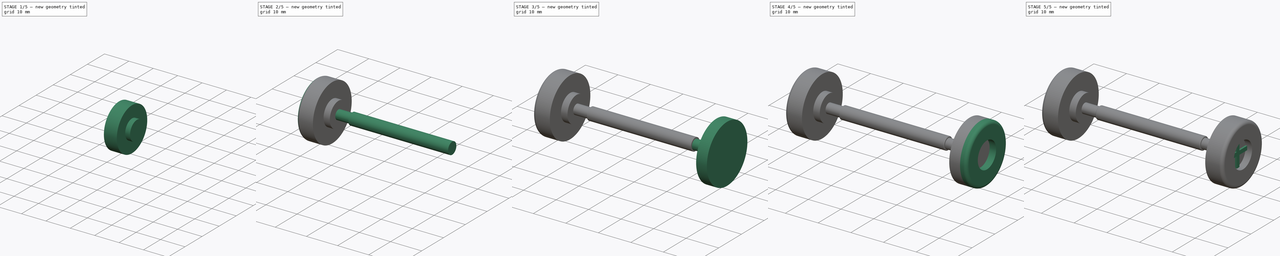
[diagram: build sequence overview — one tinted view per stage of 5, left to right]
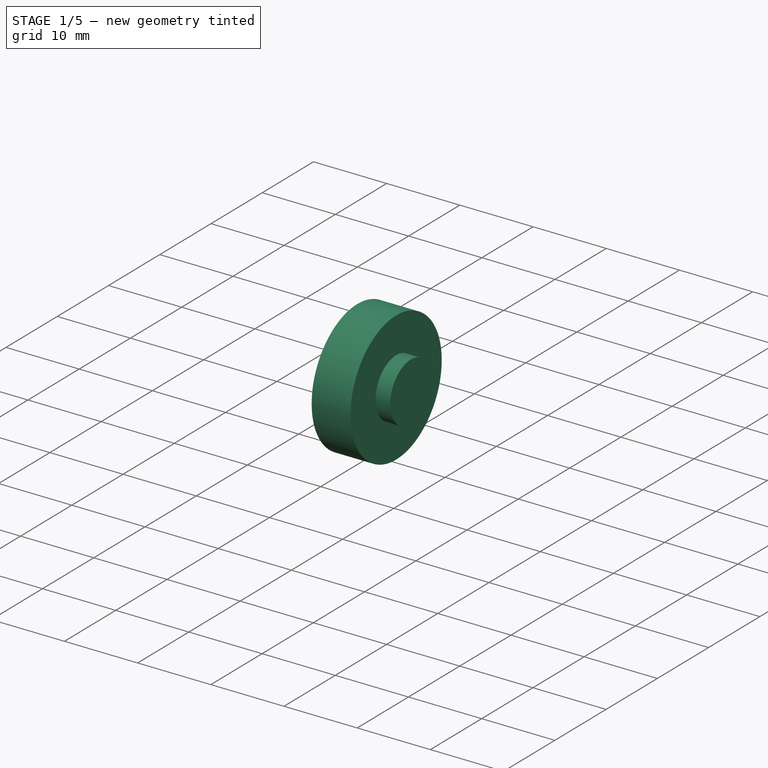
[diagram: stage 1 of 5 — iso view after this stage's code; geometry added in this stage tinted green]
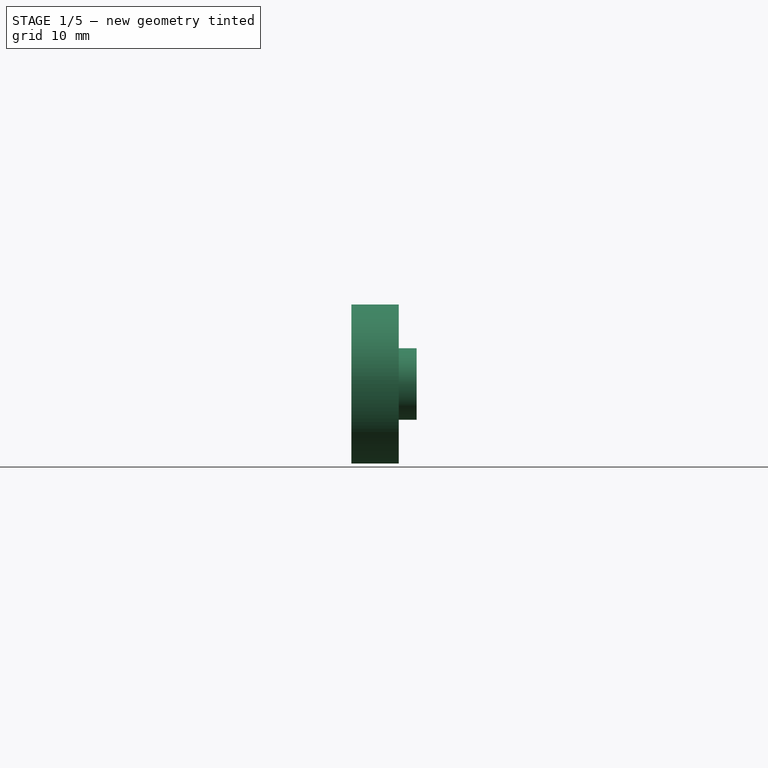
[diagram: stage 1 of 5 — front view after this stage's code; geometry added in this stage tinted green]
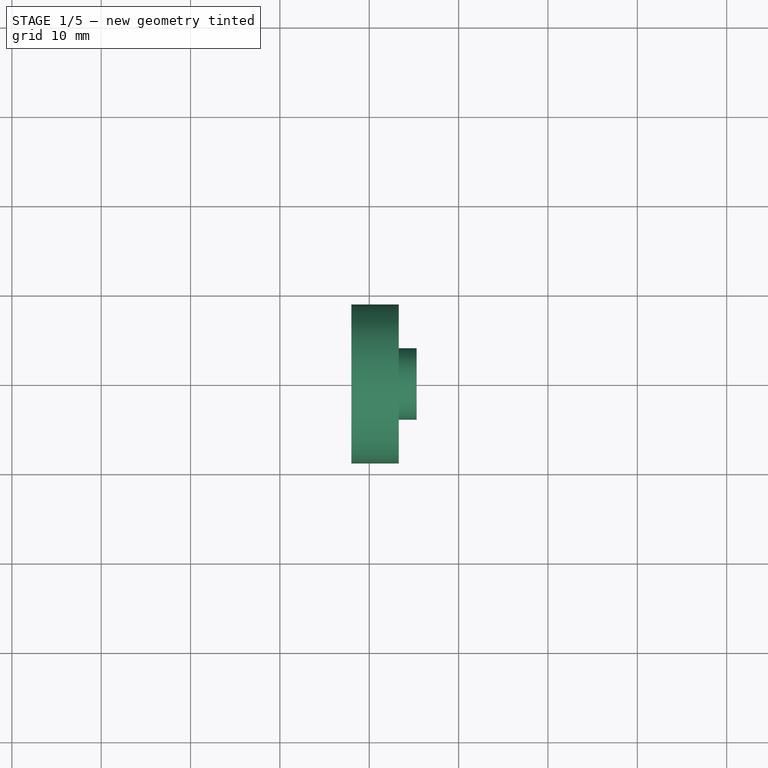
[diagram: stage 1 of 5 — top view after this stage's code; geometry added in this stage tinted green]
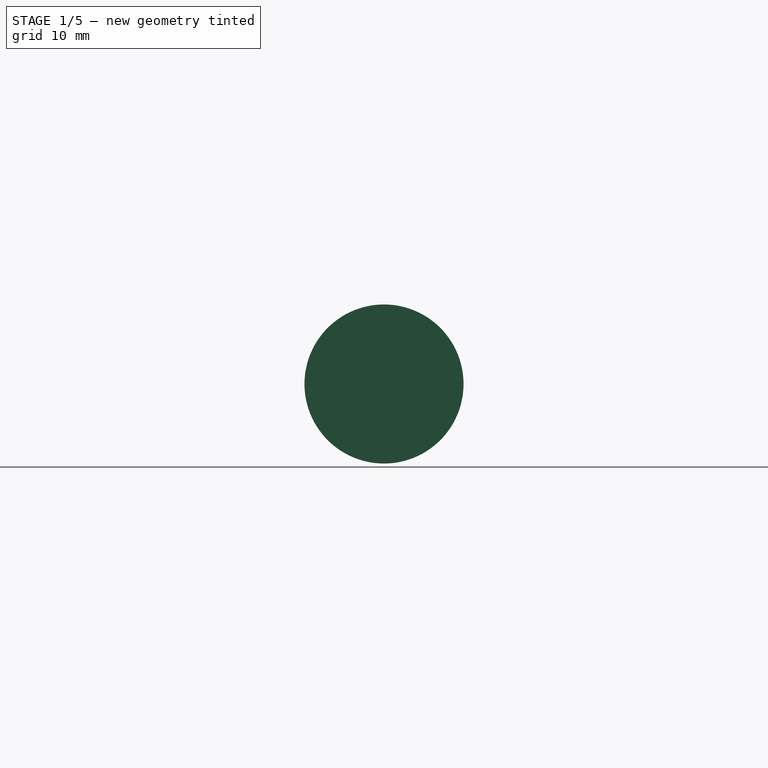
[diagram: stage 1 of 5 — right view after this stage's code; geometry added in this stage tinted green]
FCSTD DOCUMENT  (FreeCAD 0.18R16155 (Git))
Label: roues_arbre_magique2
License: All rights reserved
LicenseURL: http://en.wikipedia.org/wiki/All_rights_reserved
objects: Sketcher::SketchObject×11, PartDesign::Pad×11, PartDesign::Fillet×4, PartDesign::Body×1, App::Part×1
note: 38 computed .brp shape members not serialized (recipe doc carries the construction recipe); baked Part::Feature solids carry a one-line shape summary decoded from their .brp

FEATURE [Sketcher::SketchObject] Sketch
  MapMode = 5
  Placement = pos=(0,0,0) rot=(0.57735,0.57735,0.57735;2.0944rad)
  Support = -> [YZ_Plane001]
  sketch-geometry (1):
    g0: Circle CenterX=0 CenterY=0 CenterZ=0 NormalX=0 NormalY=0 NormalZ=1 AngleXU=0 Radius=8.9
  constraints (2):
    c: Coincident(g0,g-1)
    c: Diameter(g0) = 17.8
FEATURE [PartDesign::Pad] Pad
  Length = 3.3
  Length2 = 100
  Placement = pos=(0,0,0) rot=(0.57735,0.57735,0.57735;2.0944rad)
  Profile = -> Sketch
  Type = 0
FEATURE [Sketcher::SketchObject] Sketch001
  MapMode = 5
  Placement = pos=(0,0,0) rot=(0.57735,0.57735,-0.57735;4.18879rad)
  Support = -> [Pad]
  sketch-geometry (2):
    g0: Circle CenterX=0 CenterY=0 CenterZ=0 NormalX=0 NormalY=0 NormalZ=1 AngleXU=0 Radius=8.9
    g1: Circle CenterX=0 CenterY=0 CenterZ=0 NormalX=0 NormalY=0 NormalZ=1 AngleXU=0 Radius=4
  constraints (4):
    c: Coincident(g0,g-1)
    c: Diameter(g0) = 17.8
    c: Diameter(g1) = 8
    c: Coincident(g1,g0)
FEATURE [PartDesign::Pad] Pad001
  BaseFeature = -> Pad
  Length = 2
  Length2 = 100
  Placement = pos=(0,0,0) rot=(0.57735,0.57735,0.57735;2.0944rad)
  Profile = -> Sketch001
  Type = 0
FEATURE [Sketcher::SketchObject] Sketch003
  MapMode = 5
  Placement = pos=(3.3,-2.2e-15,1.5e-15) rot=(0.57735,0.57735,0.57735;2.0944rad)
  Support = -> [Pad001]
  sketch-geometry (1):
    g0: Circle CenterX=0 CenterY=0 CenterZ=0 NormalX=0 NormalY=0 NormalZ=1 AngleXU=0 Radius=4
  constraints (2):
    c: Coincident(g0,g-1)
    c: Diameter(g0) = 8
FEATURE [PartDesign::Pad] Pad002
  BaseFeature = -> Pad001
  Length = 2
  Length2 = 100
  Placement = pos=(0,0,0) rot=(0.57735,0.57735,0.57735;2.0944rad)
  Profile = -> Sketch003
  Type = 0
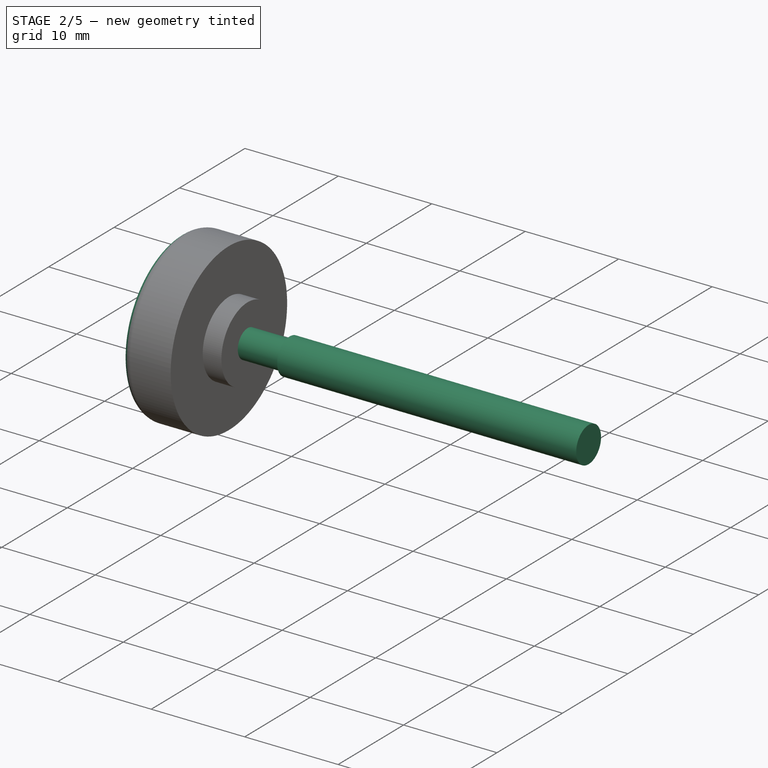
[diagram: stage 2 of 5 — iso view after this stage's code; geometry added in this stage tinted green]
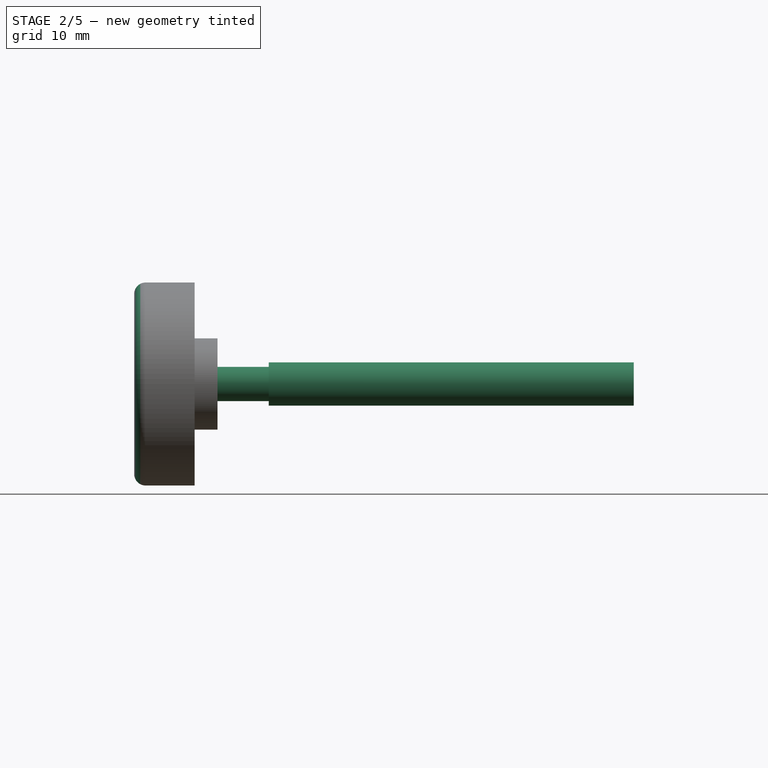
[diagram: stage 2 of 5 — front view after this stage's code; geometry added in this stage tinted green]
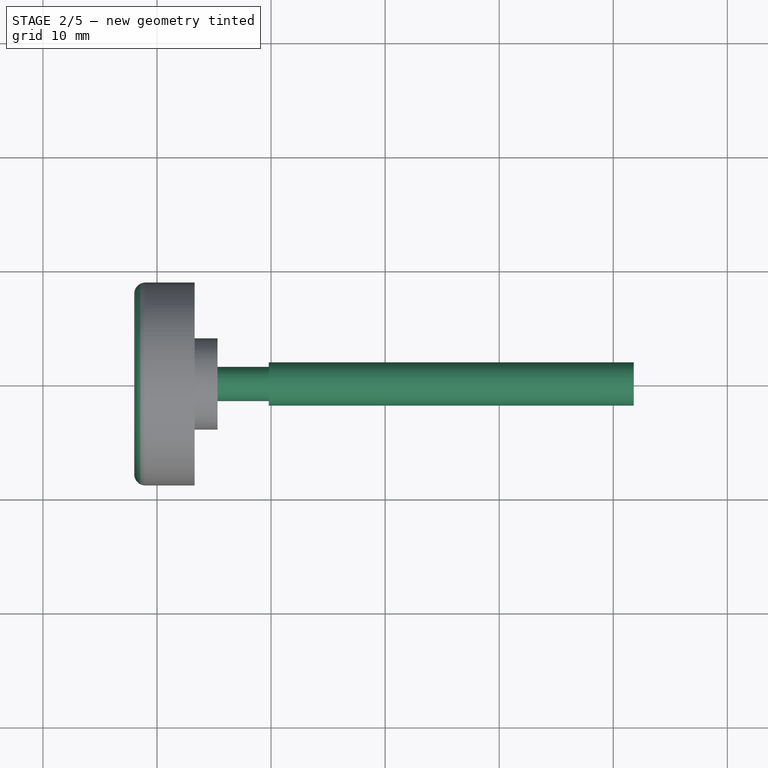
[diagram: stage 2 of 5 — top view after this stage's code; geometry added in this stage tinted green]
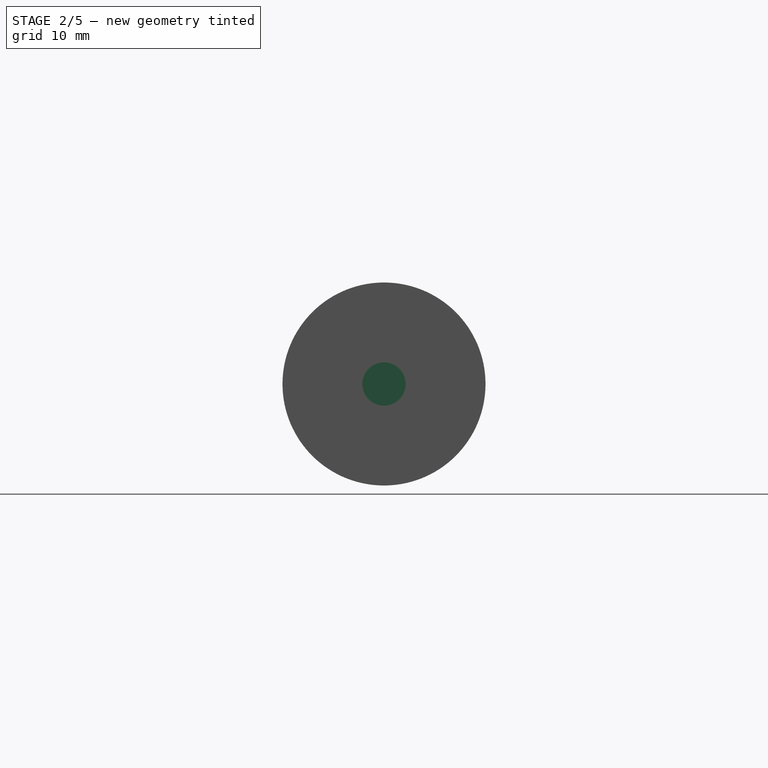
[diagram: stage 2 of 5 — right view after this stage's code; geometry added in this stage tinted green]
FEATURE [Sketcher::SketchObject] Sketch004
  MapMode = 5
  Placement = pos=(5.3,-4.7e-15,3.3e-15) rot=(0.57735,0.57735,0.57735;2.0944rad)
  Support = -> [Pad002]
  sketch-geometry (1):
    g0: Circle CenterX=0 CenterY=0 CenterZ=0 NormalX=0 NormalY=0 NormalZ=1 AngleXU=0 Radius=1.5
  constraints (2):
    c: Coincident(g0,g-1)
    c: Diameter(g0) = 3
FEATURE [PartDesign::Pad] Pad003
  BaseFeature = -> Pad002
  Length = 4.5
  Length2 = 100
  Placement = pos=(0,0,0) rot=(0.57735,0.57735,0.57735;2.0944rad)
  Profile = -> Sketch004
  Type = 0
FEATURE [Sketcher::SketchObject] Sketch005
  MapMode = 5
  Placement = pos=(9.8,-8e-15,4.4e-15) rot=(0.57735,0.57735,0.57735;2.0944rad)
  Support = -> [Pad003]
  sketch-geometry (1):
    g0: Circle CenterX=0 CenterY=0 CenterZ=0 NormalX=0 NormalY=0 NormalZ=1 AngleXU=0 Radius=1.9
  constraints (2):
    c: Coincident(g0,g-1)
    c: Diameter(g0) = 3.8
FEATURE [PartDesign::Pad] Pad004
  BaseFeature = -> Pad003
  Length = 32
  Length2 = 100
  Placement = pos=(0,0,0) rot=(0.57735,0.57735,0.57735;2.0944rad)
  Profile = -> Sketch005
  Type = 0
FEATURE [PartDesign::Fillet] Fillet
  Base = -> Pad004 [Edge14]
  BaseFeature = -> Pad004
  Placement = pos=(0,0,0) rot=(0.57735,0.57735,0.57735;2.0944rad)
  Radius = 1
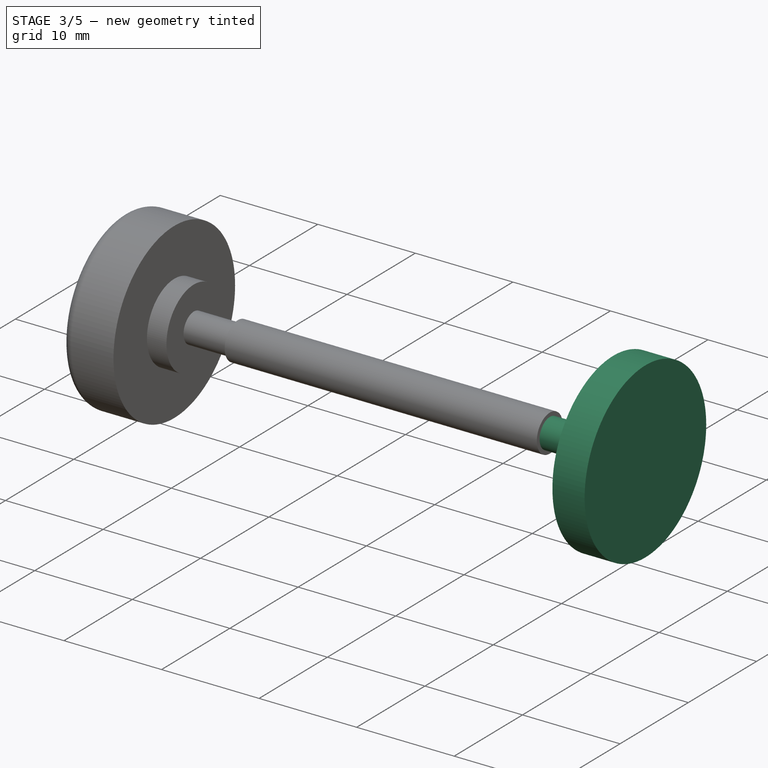
[diagram: stage 3 of 5 — iso view after this stage's code; geometry added in this stage tinted green]
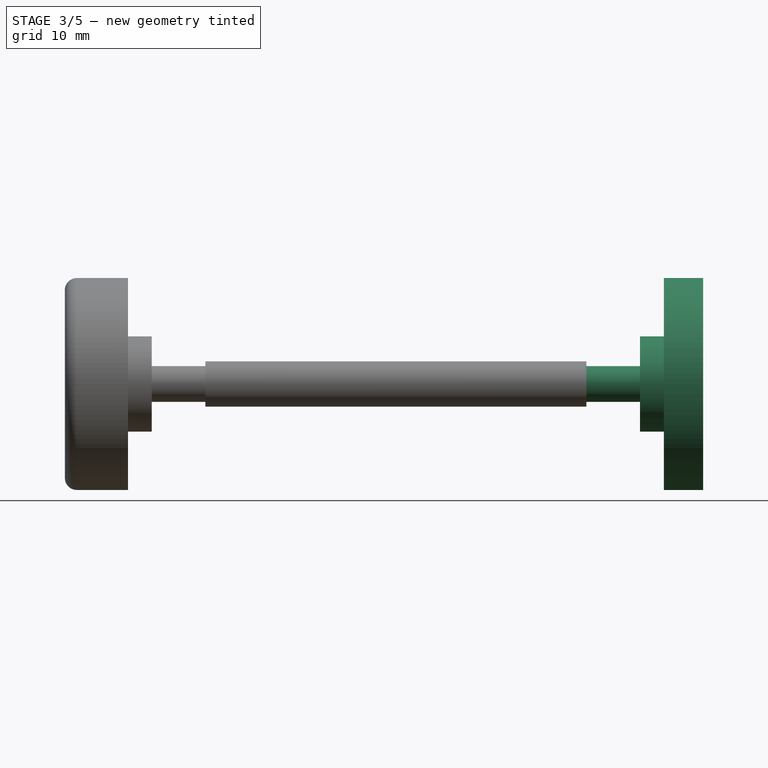
[diagram: stage 3 of 5 — front view after this stage's code; geometry added in this stage tinted green]
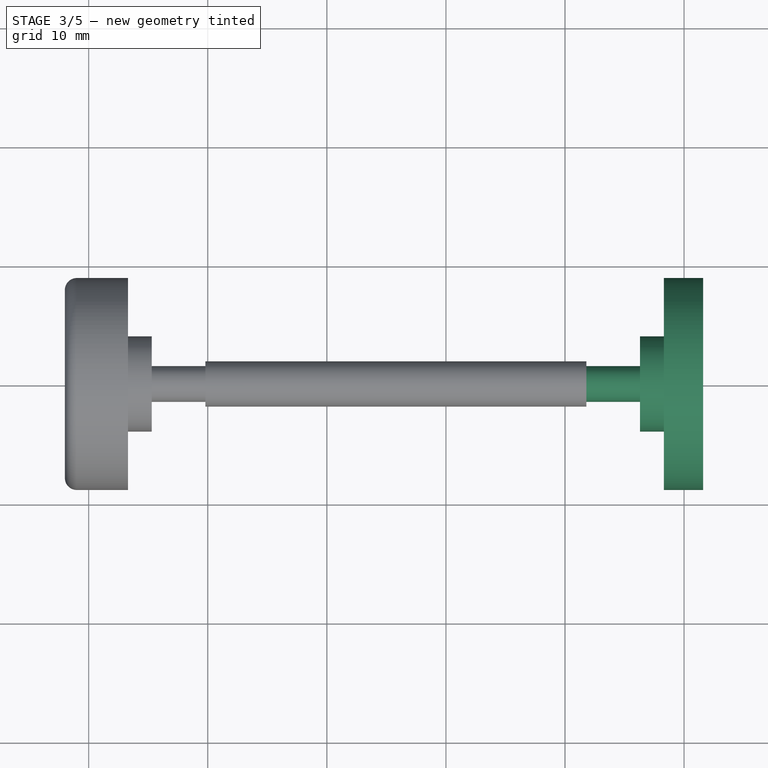
[diagram: stage 3 of 5 — top view after this stage's code; geometry added in this stage tinted green]
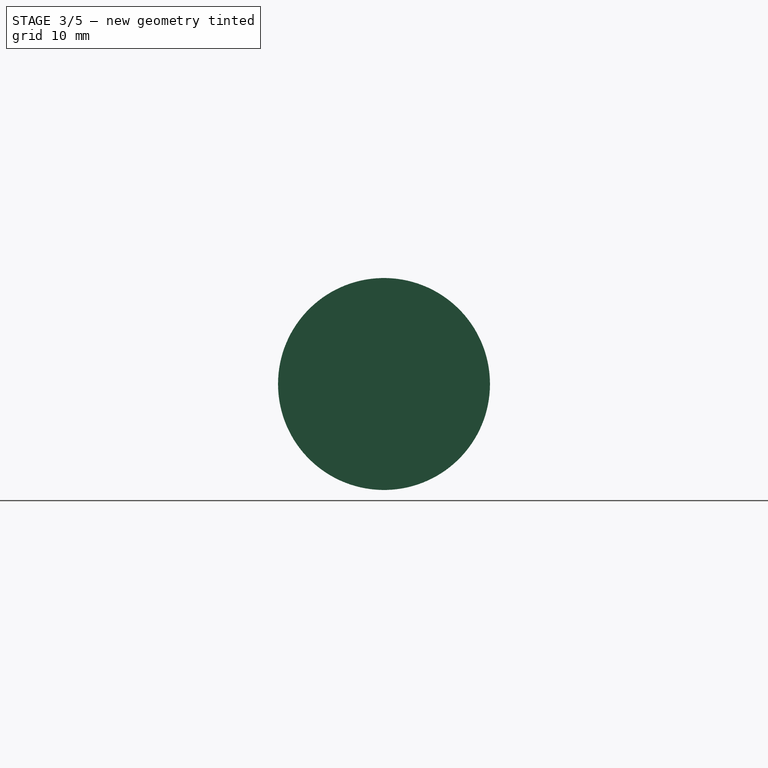
[diagram: stage 3 of 5 — right view after this stage's code; geometry added in this stage tinted green]
FEATURE [Sketcher::SketchObject] Sketch006
  MapMode = 5
  Placement = pos=(41.8,-4.84e-14,2.72e-14) rot=(0.57735,0.57735,0.57735;2.0944rad)
  Support = -> [Fillet]
  sketch-geometry (1):
    g0: Circle CenterX=0 CenterY=0 CenterZ=0 NormalX=0 NormalY=0 NormalZ=1 AngleXU=0 Radius=1.5
  constraints (2):
    c: Diameter(g0) = 3
    c: Coincident(g0,g-1)
FEATURE [PartDesign::Pad] Pad005
  BaseFeature = -> Fillet
  Length = 4.5
  Length2 = 100
  Placement = pos=(0,0,0) rot=(0.57735,0.57735,0.57735;2.0944rad)
  Profile = -> Sketch006
  Type = 0
FEATURE [Sketcher::SketchObject] Sketch007
  MapMode = 5
  Placement = pos=(46.3,-1.03e-14,5.1e-15) rot=(0.57735,0.57735,0.57735;2.0944rad)
  Support = -> [Pad005]
  sketch-geometry (1):
    g0: Circle CenterX=0 CenterY=0 CenterZ=0 NormalX=0 NormalY=0 NormalZ=1 AngleXU=0 Radius=4
  constraints (2):
    c: Coincident(g0,g-1)
    c: Diameter(g0) = 8
FEATURE [PartDesign::Pad] Pad006
  BaseFeature = -> Pad005
  Length = 2
  Length2 = 100
  Placement = pos=(0,0,0) rot=(0.57735,0.57735,0.57735;2.0944rad)
  Profile = -> Sketch007
  Type = 0
FEATURE [Sketcher::SketchObject] Sketch008
  MapMode = 5
  Placement = pos=(48.3,-1.07e-14,5.4e-15) rot=(0.57735,0.57735,0.57735;2.0944rad)
  Support = -> [Pad006]
  sketch-geometry (1):
    g0: Circle CenterX=0 CenterY=0 CenterZ=0 NormalX=0 NormalY=0 NormalZ=1 AngleXU=0 Radius=8.9
  constraints (2):
    c: Coincident(g0,g-1)
    c: Diameter(g0) = 17.8
FEATURE [PartDesign::Pad] Pad007
  BaseFeature = -> Pad006
  Length = 3.3
  Length2 = 100
  Placement = pos=(0,0,0) rot=(0.57735,0.57735,0.57735;2.0944rad)
  Profile = -> Sketch008
  Type = 0
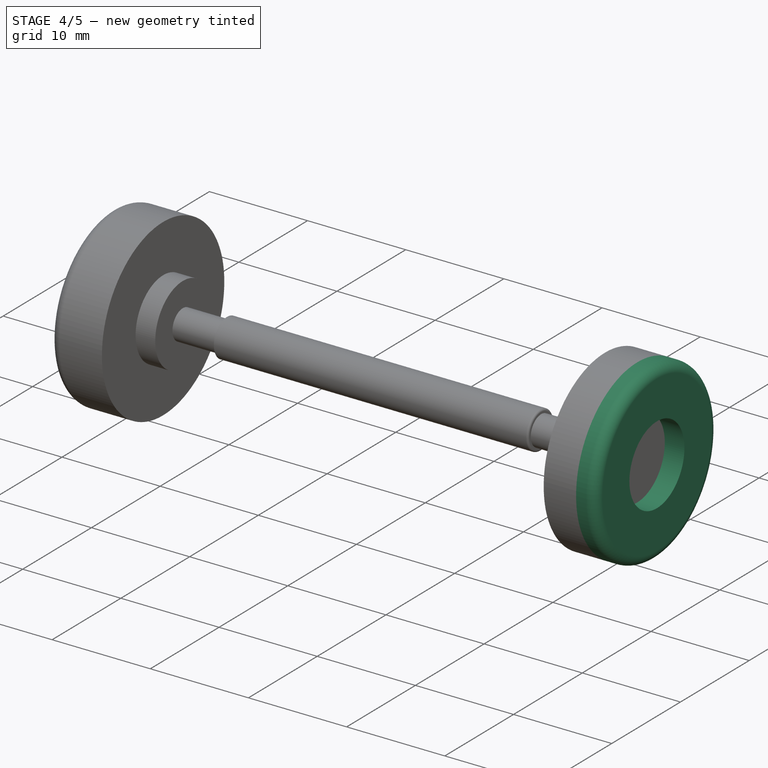
[diagram: stage 4 of 5 — iso view after this stage's code; geometry added in this stage tinted green]
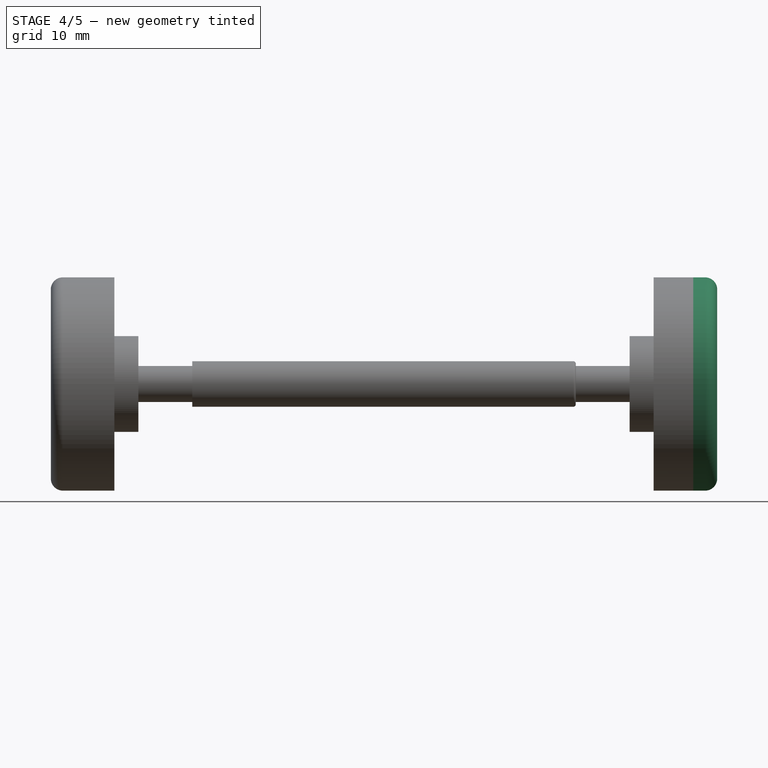
[diagram: stage 4 of 5 — front view after this stage's code; geometry added in this stage tinted green]
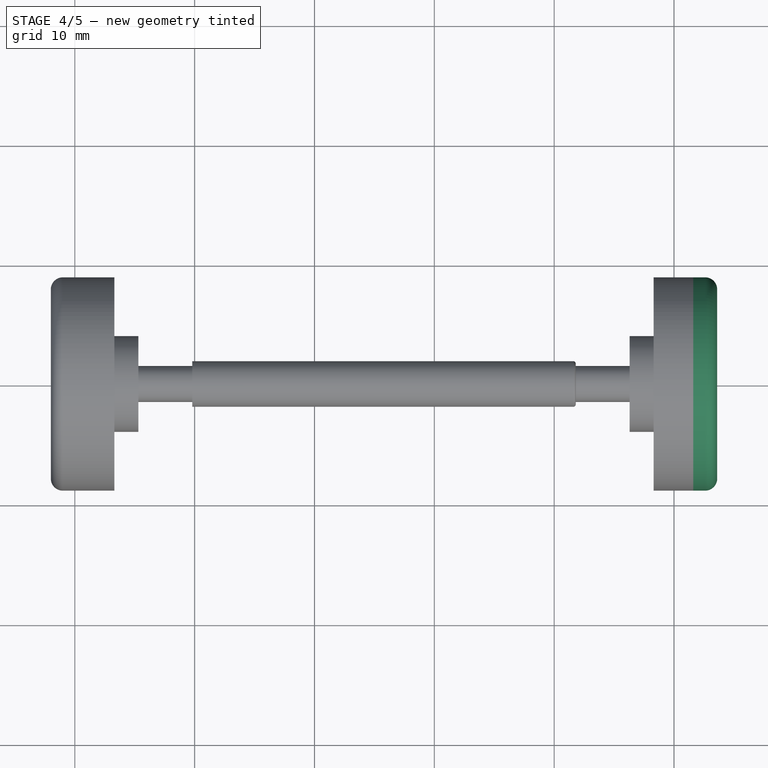
[diagram: stage 4 of 5 — top view after this stage's code; geometry added in this stage tinted green]
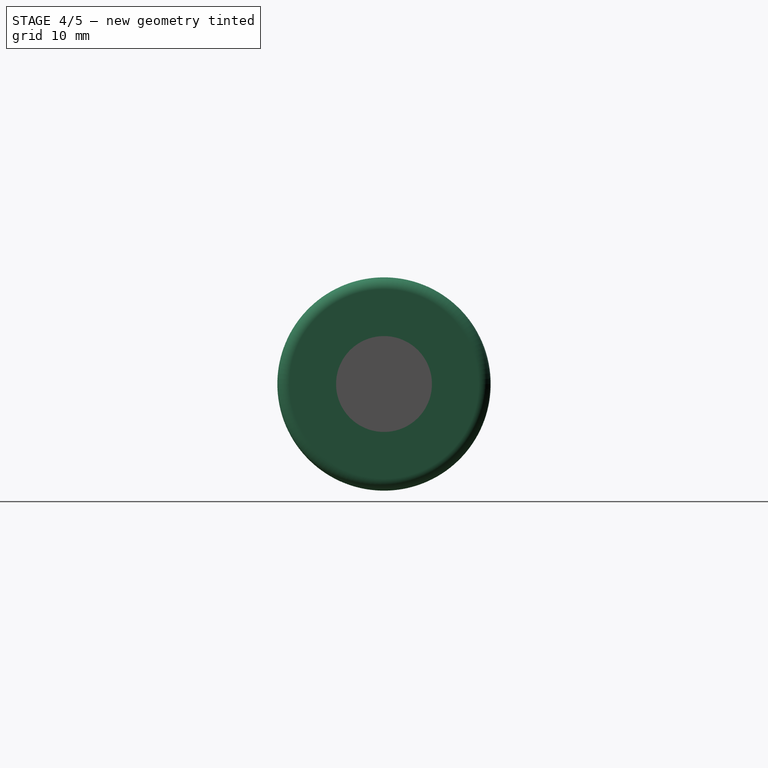
[diagram: stage 4 of 5 — right view after this stage's code; geometry added in this stage tinted green]
FEATURE [Sketcher::SketchObject] Sketch009
  MapMode = 5
  Placement = pos=(51.6,-1.15e-14,5.7e-15) rot=(0.57735,0.57735,0.57735;2.0944rad)
  Support = -> [Pad007]
  sketch-geometry (2):
    g0: Circle CenterX=0 CenterY=0 CenterZ=0 NormalX=0 NormalY=0 NormalZ=1 AngleXU=0 Radius=8.9
    g1: Circle CenterX=0 CenterY=0 CenterZ=0 NormalX=0 NormalY=0 NormalZ=1 AngleXU=0 Radius=4
  constraints (4):
    c: Coincident(g1,g0)
    c: Coincident(g0,g-1)
    c: Diameter(g0) = 17.8
    c: Diameter(g1) = 8
FEATURE [PartDesign::Pad] Pad008
  BaseFeature = -> Pad007
  Length = 2
  Length2 = 100
  Placement = pos=(0,0,0) rot=(0.57735,0.57735,0.57735;2.0944rad)
  Profile = -> Sketch009
  Type = 0
FEATURE [PartDesign::Fillet] Fillet001
  Base = -> Pad008 [Edge6]
  BaseFeature = -> Pad008
  Placement = pos=(0,0,0) rot=(0.57735,0.57735,0.57735;2.0944rad)
  Radius = 1
FEATURE [PartDesign::Fillet] Fillet002
  Base = -> Fillet001 [Edge17]
  BaseFeature = -> Fillet001
  Placement = pos=(0,0,0) rot=(0.57735,0.57735,0.57735;2.0944rad)
  Radius = 0.2
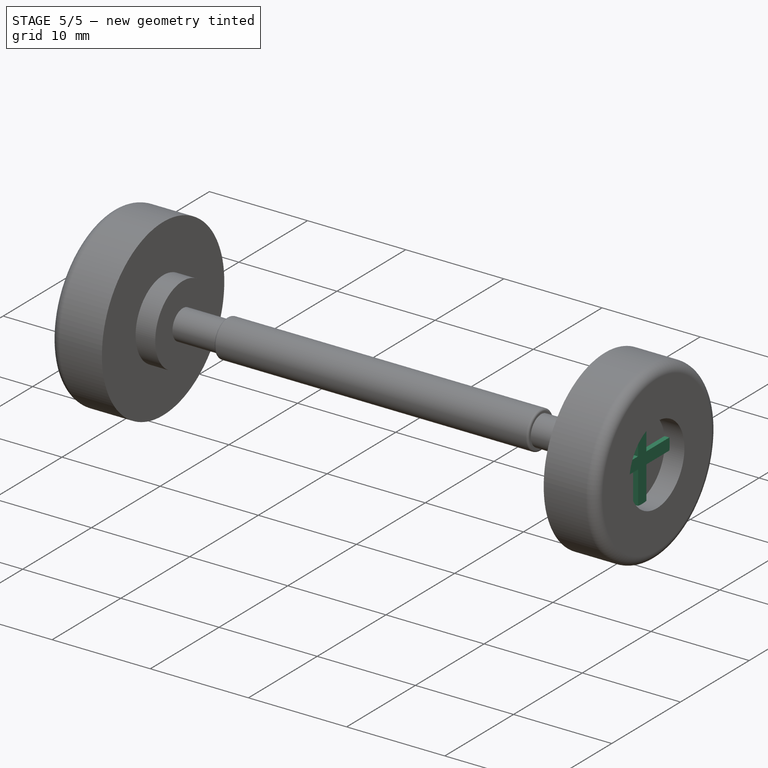
[diagram: stage 5 of 5 — iso view after this stage's code; geometry added in this stage tinted green]
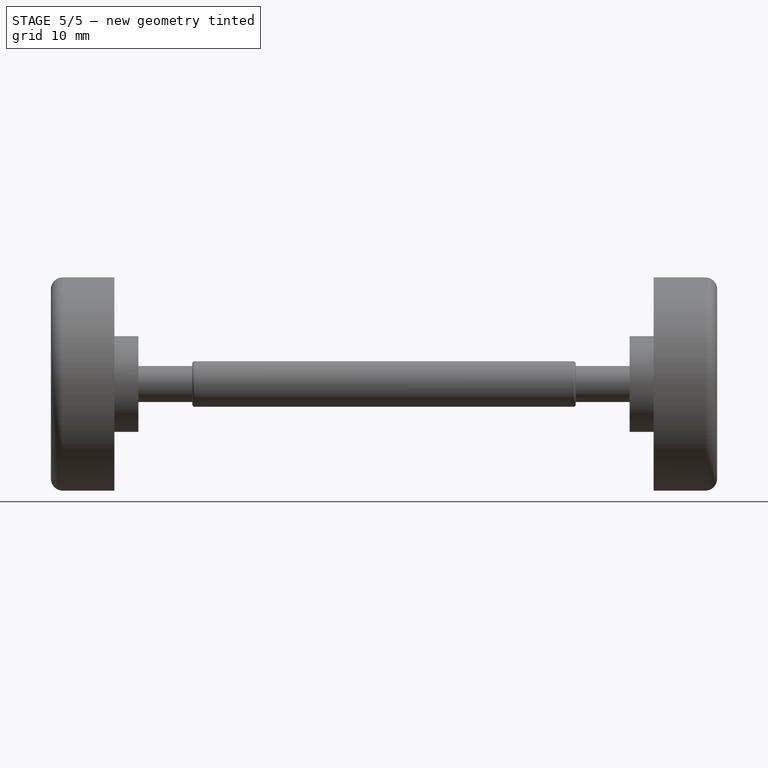
[diagram: stage 5 of 5 — front view after this stage's code; geometry added in this stage tinted green]
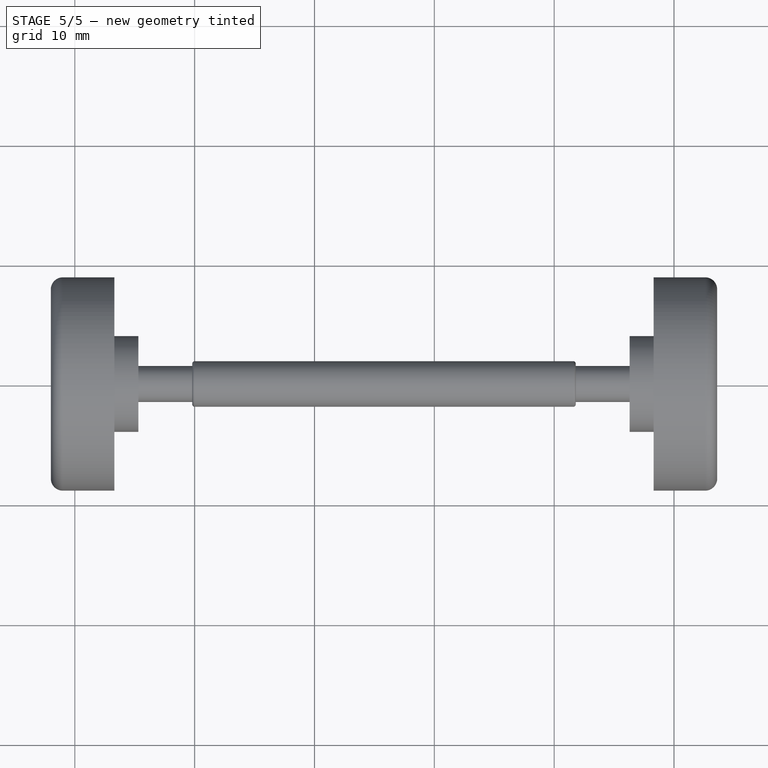
[diagram: stage 5 of 5 — top view after this stage's code; geometry added in this stage tinted green]
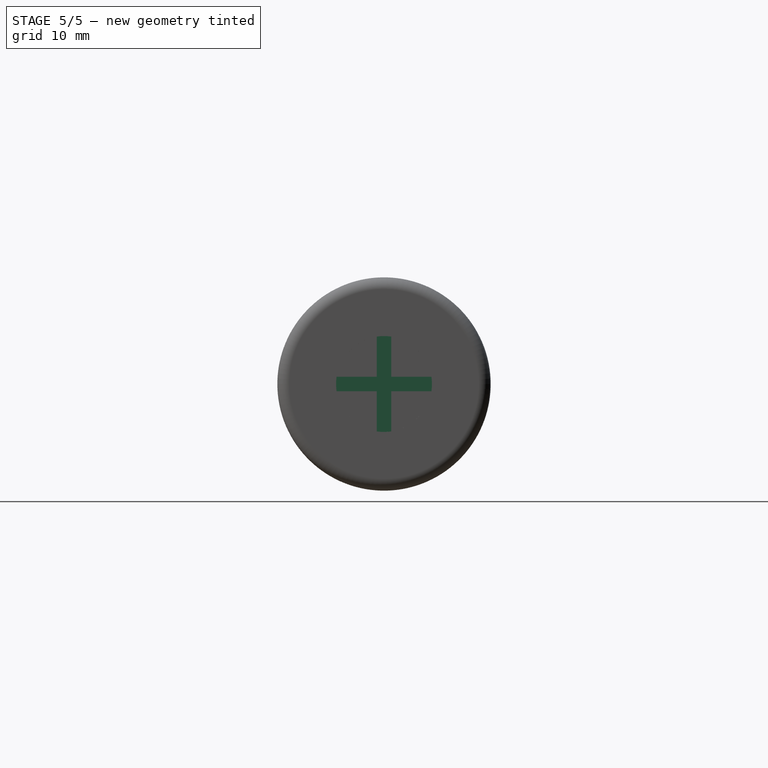
[diagram: stage 5 of 5 — right view after this stage's code; geometry added in this stage tinted green]
FEATURE [PartDesign::Fillet] Fillet003
  Base = -> Fillet002 [Edge8]
  BaseFeature = -> Fillet002
  Placement = pos=(0,0,0) rot=(0.57735,0.57735,0.57735;2.0944rad)
  Radius = 0.2
FEATURE [Sketcher::SketchObject] Sketch010
  MapMode = 5
  Placement = pos=(0,0,0) rot=(-0.57735,-0.57735,0.57735;2.0944rad)
  Support = -> [Fillet003]
  sketch-geometry (20):
    g0: LineSegment [constr] StartX=0.6 StartY=0.6 StartZ=0 EndX=-0.6 EndY=0.6 EndZ=0
    g1: LineSegment [constr] StartX=0.6 StartY=0.6 StartZ=0 EndX=0.6 EndY=-0.6 EndZ=0
    g2: LineSegment [constr] StartX=0.6 StartY=-0.6 StartZ=0 EndX=-0.6 EndY=-0.6 EndZ=0
    g3: LineSegment [constr] StartX=-0.6 StartY=-0.6 StartZ=0 EndX=-0.6 EndY=0.6 EndZ=0
    g4: LineSegment StartX=-0.6 StartY=0.6 StartZ=0 EndX=-0.6 EndY=4 EndZ=0
    g5: LineSegment StartX=0.6 StartY=4 StartZ=0 EndX=0.6 EndY=0.6 EndZ=0
    g6: LineSegment StartX=-0.6 StartY=4 StartZ=0 EndX=0.6 EndY=4 EndZ=0
    g7: LineSegment StartX=0.6 StartY=0.6 StartZ=0 EndX=4 EndY=0.6 EndZ=0
    g8: LineSegment StartX=4 StartY=0.6 StartZ=0 EndX=4 EndY=-0.6 EndZ=0
    g9: LineSegment StartX=4 StartY=-0.6 StartZ=0 EndX=0.6 EndY=-0.6 EndZ=0
    g10: LineSegment StartX=0.6 StartY=-0.6 StartZ=0 EndX=0.6 EndY=-4 EndZ=0
    g11: LineSegment StartX=0.6 StartY=-4 StartZ=0 EndX=-0.6 EndY=-4 EndZ=0
    g12: LineSegment StartX=-0.6 StartY=-4 StartZ=0 EndX=-0.6 EndY=-0.6 EndZ=0
    g13: LineSegment StartX=-0.6 StartY=-0.6 StartZ=0 EndX=-4 EndY=-0.6 EndZ=0
    g14: LineSegment StartX=-0.6 StartY=0.6 StartZ=0 EndX=-4 EndY=0.6 EndZ=0
    g15: LineSegment StartX=-4 StartY=0.6 StartZ=0 EndX=-4 EndY=-0.6 EndZ=0
    g16: LineSegment [constr] StartX=-0.6 StartY=0.6 StartZ=0 EndX=0 EndY=0 EndZ=0
    g17: LineSegment [constr] StartX=0 StartY=0 StartZ=0 EndX=0.6 EndY=0.6 EndZ=0
    g18: LineSegment [constr] StartX=0.6 StartY=-0.6 StartZ=0 EndX=0 EndY=0 EndZ=0
    g19: LineSegment [constr] StartX=-0.6 StartY=-0.6 StartZ=0 EndX=0 EndY=0 EndZ=0
  constraints (52):
    c: Coincident(g4,g6)
    c: Coincident(g4,g0)
    c: Coincident(g0,g5)
    c: Coincident(g3,g4)
    c: Coincident(g4,g16)
    c: Coincident(g16,g-1)
    c: Coincident(g17,g5)
    c: Coincident(g7,g1)
    c: Coincident(g7,g5)
    c: Coincident(g1,g9)
    c: Coincident(g9,g10)
    c: Coincident(g9,g8)
    c: Coincident(g8,g7)
    c: Coincident(g5,g6)
    c: Coincident(g-1,g17)
    c: Coincident(g18,g-1)
    c: Coincident(g18,g9)
    c: Coincident(g2,g9)
    c: Coincident(g2,g19)
    c: Coincident(g2,g3)
    c: Coincident(g19,g-1)
    c: Coincident(g12,g2)
    c: Coincident(g12,g11)
    c: Coincident(g11,g10)
    c: Coincident(g13,g12)
    c: Coincident(g14,g4)
    c: Coincident(g14,g15)
    c: Coincident(g15,g13)
    c: Parallel(g5,g1)
    c: Parallel(g1,g3)
    c: Parallel(g10,g12)
    c: Parallel(g10,g1)
    c: Parallel(g0,g2)
    c: Parallel(g14,g13)
    c: Parallel(g0,g7)
    c: Parallel(g0,g14)
    c: Equal(g8,g6)
    c: Equal(g8,g1)
    c: Equal(g0,g6)
    c: Distance(g8) = 1.2
    c: Equal(g7,g5)
    c: Equal(g5,g4)
    c: Equal(g4,g14)
    c: Equal(g14,g13)
    c: Equal(g13,g12)
    c: Equal(g12,g10)
    c: Equal(g10,g9)
    c: Equal(g16,g17)
    c: Equal(g17,g18)
    c: Equal(g18,g19)
    c: Perpendicular(g1,g-1)
    c: Distance(g7) = 3.4
FEATURE [PartDesign::Pad] Pad009
  BaseFeature = -> Fillet003
  Length = 0.5
  Length2 = 100
  Placement = pos=(0,0,0) rot=(0.57735,0.57735,0.57735;2.0944rad)
  Profile = -> Sketch010
  Type = 0
FEATURE [Sketcher::SketchObject] Sketch011
  MapMode = 5
  Placement = pos=(51.6,-3.44e-14,1.72e-14) rot=(0.57735,0.57735,0.57735;2.0944rad)
  Support = -> [Pad009]
  sketch-geometry (20):
    g0: LineSegment [constr] StartX=-0.6 StartY=-0.6 StartZ=0 EndX=0.6 EndY=-0.6 EndZ=0
    g1: LineSegment [constr] StartX=0.6 StartY=-0.6 StartZ=0 EndX=0.6 EndY=0.6 EndZ=0
    g2: LineSegment [constr] StartX=0.6 StartY=0.6 StartZ=0 EndX=-0.6 EndY=0.6 EndZ=0
    g3: LineSegment [constr] StartX=-0.6 StartY=0.6 StartZ=0 EndX=-0.6 EndY=-0.6 EndZ=0
    g4: LineSegment [constr] StartX=-0.6 StartY=0.6 StartZ=0 EndX=0 EndY=0 EndZ=0
    g5: LineSegment [constr] StartX=0.6 StartY=0.6 StartZ=0 EndX=0 EndY=0 EndZ=0
    g6: LineSegment [constr] StartX=0.6 StartY=-0.6 StartZ=0 EndX=0 EndY=0 EndZ=0
    g7: LineSegment [constr] StartX=-0.6 StartY=-0.6 StartZ=0 EndX=0 EndY=0 EndZ=0
    g8: LineSegment StartX=-0.6 StartY=-0.6 StartZ=0 EndX=-0.6 EndY=-4 EndZ=0
    g9: LineSegment StartX=-0.6 StartY=-4 StartZ=0 EndX=0.6 EndY=-4 EndZ=0
    g10: LineSegment StartX=0.6 StartY=-4 StartZ=0 EndX=0.6 EndY=-0.6 EndZ=0
    g11: LineSegment StartX=0.6 StartY=-0.6 StartZ=0 EndX=4 EndY=-0.6 EndZ=0
    g12: LineSegment StartX=4 StartY=-0.6 StartZ=0 EndX=4 EndY=0.6 EndZ=0
    g13: LineSegment StartX=4 StartY=0.6 StartZ=0 EndX=0.6 EndY=0.6 EndZ=0
    g14: LineSegment StartX=0.6 StartY=0.6 StartZ=0 EndX=0.6 EndY=4 EndZ=0
    g15: LineSegment StartX=0.6 StartY=4 StartZ=0 EndX=-0.6 EndY=4 EndZ=0
    g16: LineSegment StartX=-0.6 StartY=4 StartZ=0 EndX=-0.6 EndY=0.6 EndZ=0
    g17: LineSegment StartX=-0.6 StartY=0.6 StartZ=0 EndX=-4 EndY=0.6 EndZ=0
    g18: LineSegment StartX=-4 StartY=0.6 StartZ=0 EndX=-4 EndY=-0.6 EndZ=0
    g19: LineSegment StartX=-4 StartY=-0.6 StartZ=0 EndX=-0.6 EndY=-0.6 EndZ=0
  constraints (52):
    c: Coincident(g0,g1)
    c: Coincident(g1,g2)
    c: Coincident(g2,g3)
    c: Coincident(g3,g0)
    c: Horizontal(g0)
    c: Coincident(g2,g4)
    c: Coincident(g5,g1)
    c: Coincident(g0,g6)
    c: Coincident(g7,g0)
    c: Coincident(g7,g-1)
    c: Coincident(g6,g-1)
    c: Coincident(g5,g-1)
    c: Coincident(g4,g-1)
    c: Coincident(g16,g2)
    c: Coincident(g16,g15)
    c: Coincident(g1,g14)
    c: Coincident(g14,g15)
    c: Coincident(g13,g12)
    c: Coincident(g12,g11)
    c: Coincident(g11,g0)
    c: Coincident(g13,g14)
    c: Coincident(g10,g11)
    c: Coincident(g9,g10)
    c: Coincident(g9,g8)
    c: Coincident(g8,g0)
    c: Coincident(g19,g8)
    c: Coincident(g17,g16)
    c: Coincident(g17,g18)
    c: Coincident(g18,g19)
    c: Equal(g5,g4)
    c: Equal(g4,g7)
    c: Equal(g7,g6)
    c: Equal(g12,g15)
    c: Equal(g15,g18)
    c: Equal(g18,g9)
    c: Equal(g9,g0)
    c: Equal(g0,g1)
    c: Equal(g1,g2)
    c: Equal(g2,g3)
    c: Equal(g13,g14)
    c: Equal(g14,g16)
    c: Equal(g16,g17)
    c: Equal(g17,g19)
    c: Equal(g19,g8)
    c: Equal(g8,g10)
    c: Equal(g10,g11)
    c: Parallel(g14,g1)
    c: Parallel(g17,g2)
    c: Parallel(g13,g15)
    c: Distance(g12) = 1.2
    c: Parallel(g10,g1)
    c: Distance(g13) = 3.4
FEATURE [PartDesign::Pad] Pad010
  BaseFeature = -> Pad009
  Length = 0.5
  Length2 = 100
  Placement = pos=(0,0,0) rot=(0.57735,0.57735,0.57735;2.0944rad)
  Profile = -> Sketch011
  Type = 0
FEATURE [PartDesign::Body] Body
  Group = -> [Sketch,Pad,Sketch001,Pad001,Sketch003,Pad002,Sketch004,Pad003,Sketch005,Pad004,Fillet,Sketch006,Pad005,Sketch007,Pad006,Sketch008,Pad007,Sketch009,Pad008,Fillet001,Fillet002,Fillet003,Sketch010,Pad009,Sketch011,Pad010]
  Origin = -> Origin001
  Tip = -> Pad010
FEATURE [App::Part] Part
  Group = -> [Body]
  Origin = -> Origin
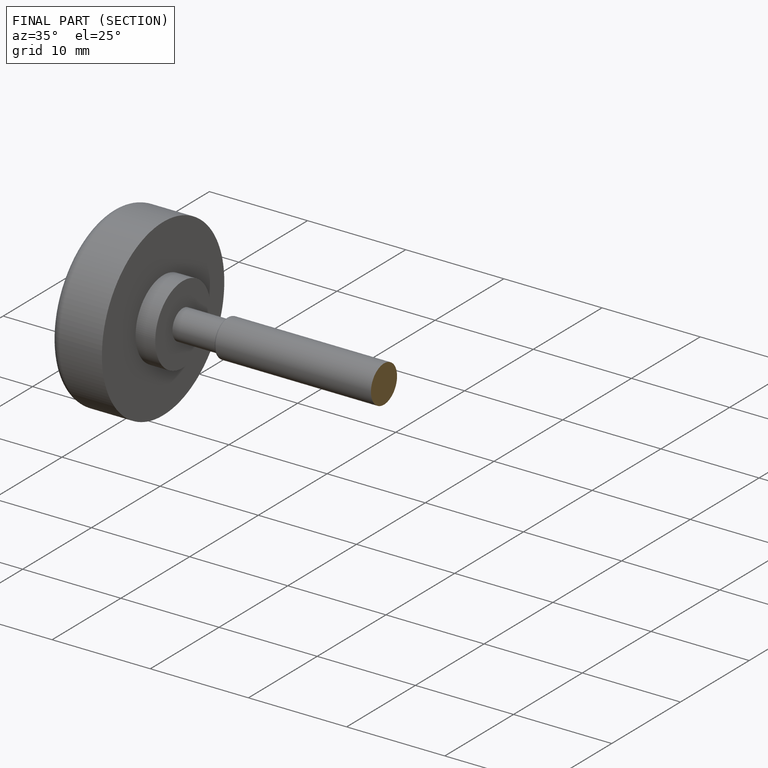
[diagram: finished part — half-section view (interior)]
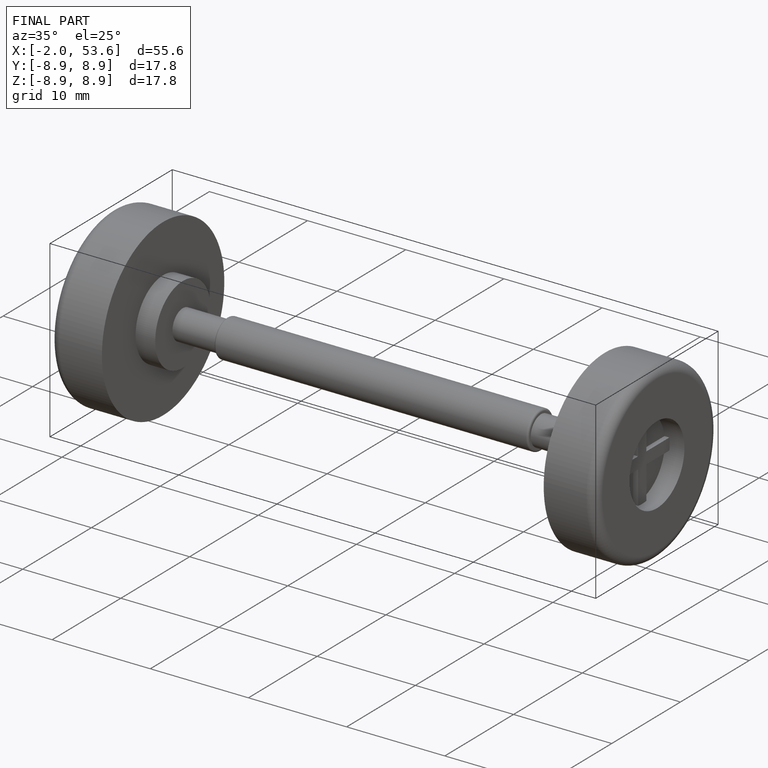
[diagram: finished part — iso view with bounding-box wireframe]
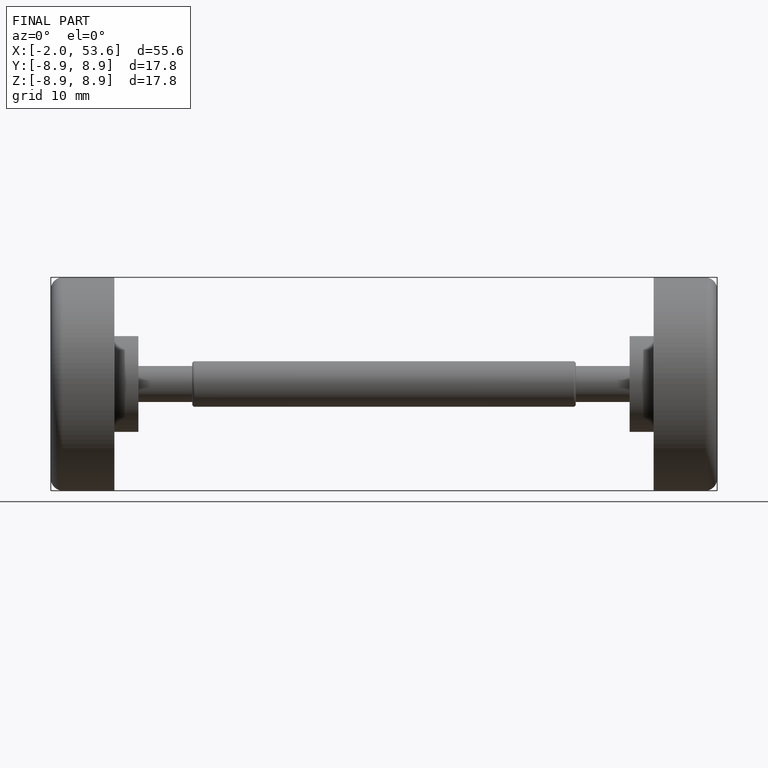
[diagram: finished part — front view with bounding-box wireframe]
